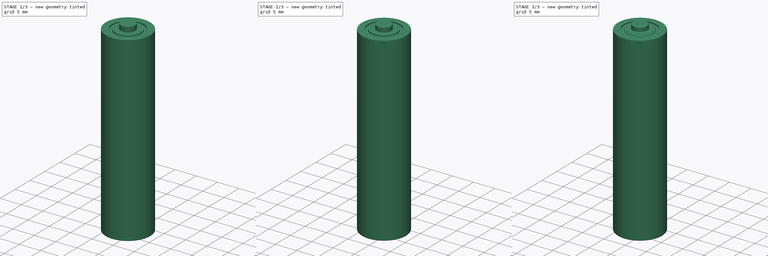
[diagram: build sequence overview — one tinted view per stage of 3, left to right]
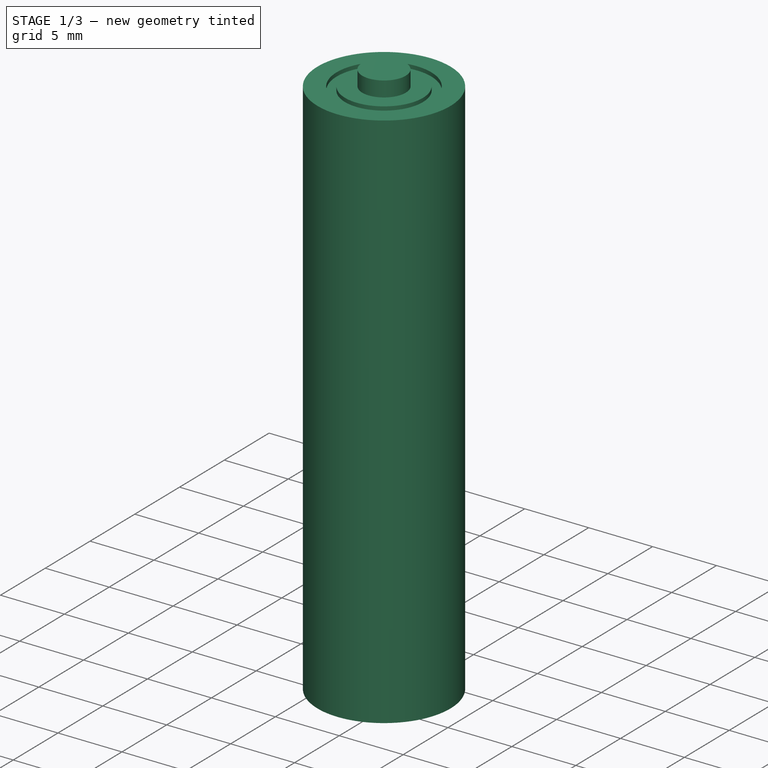
[diagram: stage 1 of 3 — iso view after this stage's code; geometry added in this stage tinted green]
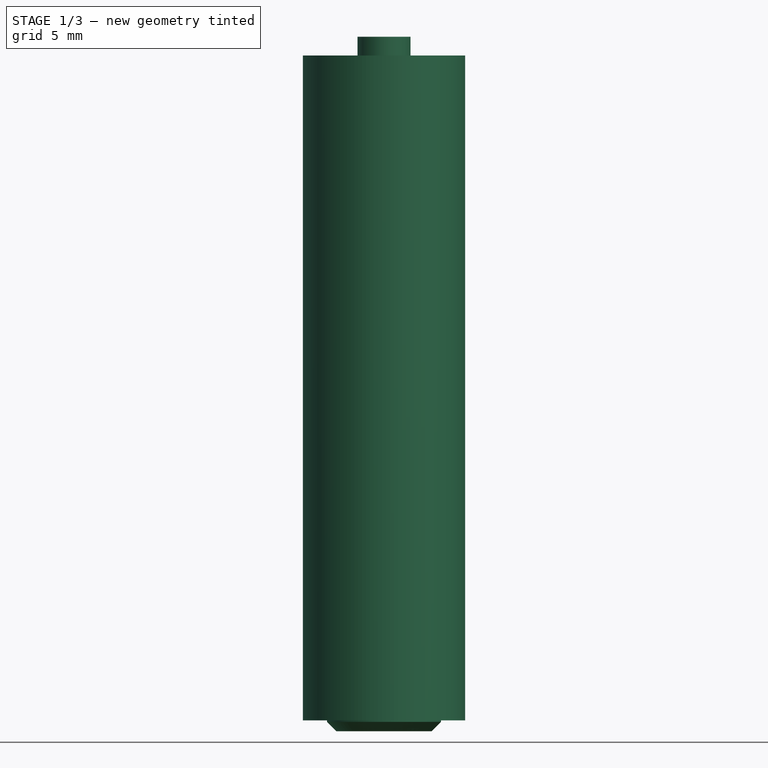
[diagram: stage 1 of 3 — front view after this stage's code; geometry added in this stage tinted green]
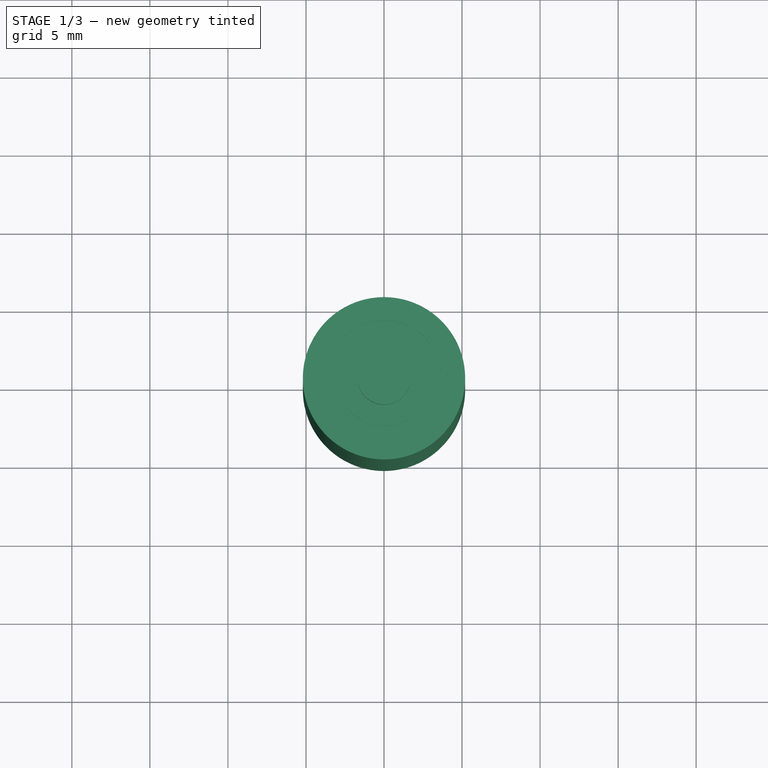
[diagram: stage 1 of 3 — top view after this stage's code; geometry added in this stage tinted green]
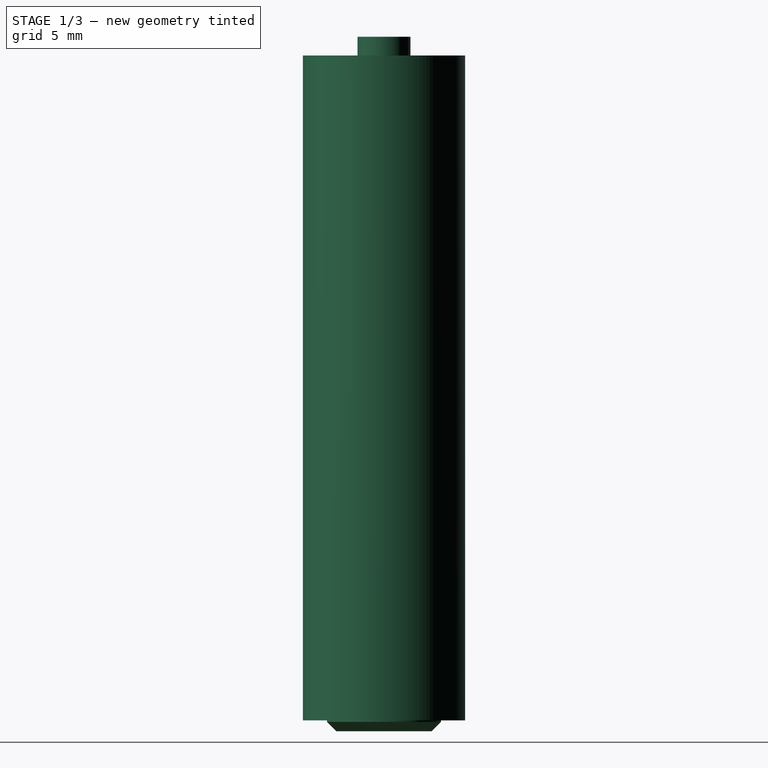
[diagram: stage 1 of 3 — right view after this stage's code; geometry added in this stage tinted green]
FCSTD DOCUMENT  (FreeCAD 0.14R3702 (Git))
Label: battery-AAA
License: CC-BY 3.0
LicenseURL: http://creativecommons.org/licenses/by/3.0/
objects: Part::Fillet×3, Part::Chamfer×2, Sketcher::SketchObject×1, PartDesign::Revolution×1, Part::Feature×1
note: 9 computed .brp shape members not serialized (recipe doc carries the construction recipe); baked Part::Feature solids carry a one-line shape summary decoded from their .brp

FEATURE [Sketcher::SketchObject] Sketch  label="battery-AAA-body-sketch"
  Placement = pos=(0,0,0) rot=(1,0,0;1.5708rad)
  sketch-geometry (12):
    g0: LineSegment StartX=0 StartY=0 StartZ=0 EndX=3.65123 EndY=0 EndZ=0
    g1: LineSegment StartX=3.65123 StartY=0 StartZ=0 EndX=3.65123 EndY=0.7 EndZ=0
    g2: LineSegment StartX=3.65123 StartY=0.7 StartZ=0 EndX=5.2 EndY=0.7 EndZ=0
    g3: LineSegment StartX=5.2 StartY=0.7 StartZ=0 EndX=5.2 EndY=43.3 EndZ=0
    g4: LineSegment StartX=5.2 StartY=43.3 StartZ=0 EndX=3.7 EndY=43.3 EndZ=0
    g5: LineSegment StartX=3.7 StartY=43.3 StartZ=0 EndX=3.7 EndY=43 EndZ=0
    g6: LineSegment StartX=3.7 StartY=43 StartZ=0 EndX=3.05 EndY=43 EndZ=0
    g7: LineSegment StartX=3.05 StartY=43 StartZ=0 EndX=3.05 EndY=43.3 EndZ=0
    g8: LineSegment StartX=3.05 StartY=43.3 StartZ=0 EndX=1.7 EndY=43.3 EndZ=0
    g9: LineSegment StartX=1.7 StartY=43.3 StartZ=0 EndX=1.7 EndY=44.5 EndZ=0
    g10: LineSegment StartX=1.7 StartY=44.5 StartZ=0 EndX=0 EndY=44.5 EndZ=0
    g11: LineSegment StartX=0 StartY=44.5 StartZ=0 EndX=0 EndY=0 EndZ=0
  constraints (34):
    c: PointOnObject(g0,g-1)
    c: Horizontal(g0)
    c: Coincident(g0,g1)
    c: Coincident(g1,g2)
    c: Horizontal(g2)
    c: Coincident(g2,g3)
    c: Vertical(g3)
    c: Coincident(g3,g4)
    c: Horizontal(g4)
    c: Coincident(g4,g5)
    c: Coincident(g5,g6)
    c: Coincident(g6,g7)
    c: Vertical(g7)
    c: Coincident(g8,g7)
    c: Horizontal(g8)
    c: Coincident(g8,g9)
    c: Coincident(g9,g10)
    c: Horizontal(g10)
    c: Vertical(g9)
    c: Vertical(g11)
    c: Coincident(g11,g10)
    c: Coincident(g11,g-1)
    c: DistanceY(g11) = -44.5
    c: Horizontal(g6)
    c: Vertical(g5)
    c: DistanceY(g9) = 1.2
    c: DistanceY(g7) = 0.3
    c: PointOnObject(g4,g8)
    c: DistanceX(g10,g3) = 5.2
    c: DistanceX(g10) = -1.7
    c: DistanceX(g6) = -0.65
    c: DistanceX(g4) = -1.5
    c: Vertical(g1)
    c: DistanceY(g1) = 0.7
FEATURE [PartDesign::Revolution] Revolution  label="battery-AAA-body"
  Angle = 360
  Axis = (0,0,1)
  Base = (0,0,0)
  Placement = pos=(0,0,0) rot=(1,0,0;1.5708rad)
  ReferenceAxis = -> Sketch [V_Axis]
  Reversed = true
  Sketch = -> Sketch
FEATURE [Part::Chamfer] Chamfer
  Base = -> Revolution
  Edges = 1 edges r=0.6: [Edge1]
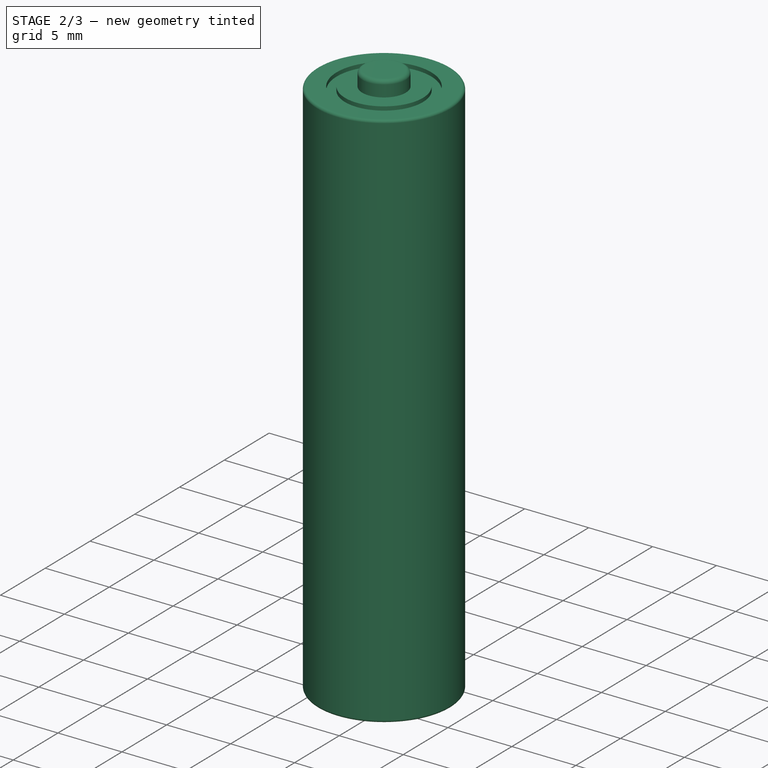
[diagram: stage 2 of 3 — iso view after this stage's code; geometry added in this stage tinted green]
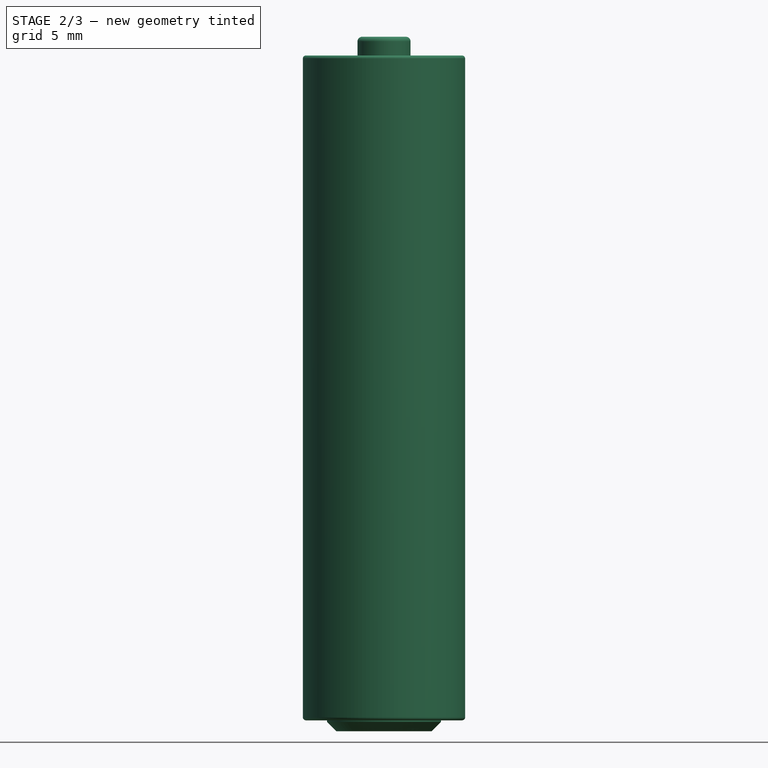
[diagram: stage 2 of 3 — front view after this stage's code; geometry added in this stage tinted green]
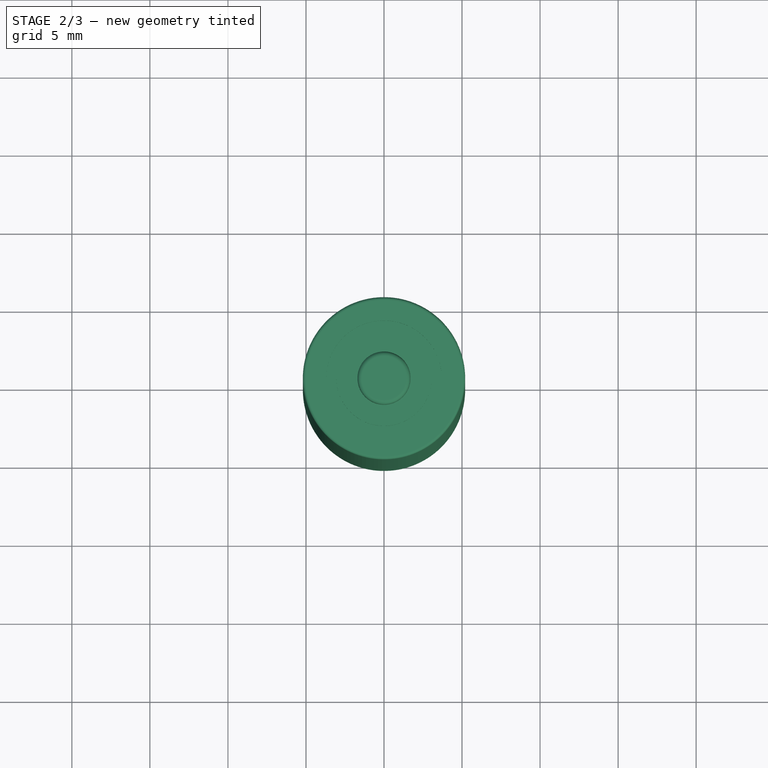
[diagram: stage 2 of 3 — top view after this stage's code; geometry added in this stage tinted green]
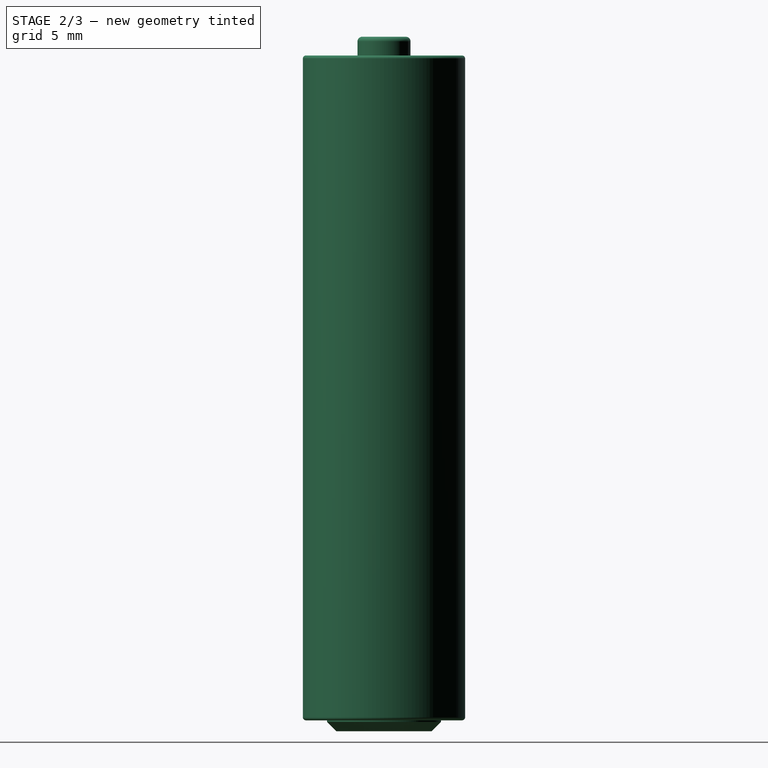
[diagram: stage 2 of 3 — right view after this stage's code; geometry added in this stage tinted green]
FEATURE [Part::Fillet] Fillet
  Base = -> Chamfer
  Edges = 2 edges r=0.2: [Edge6,Edge7]
FEATURE [Part::Fillet] Fillet001
  Base = -> Fillet
  Edges = 1 edges r=0.3: [Edge20]
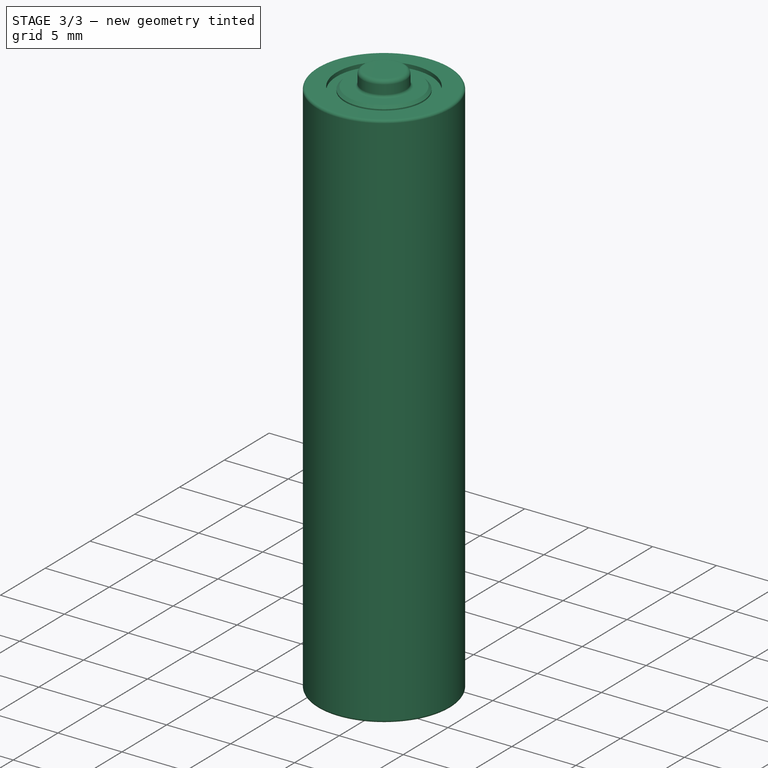
[diagram: stage 3 of 3 — iso view after this stage's code; geometry added in this stage tinted green]
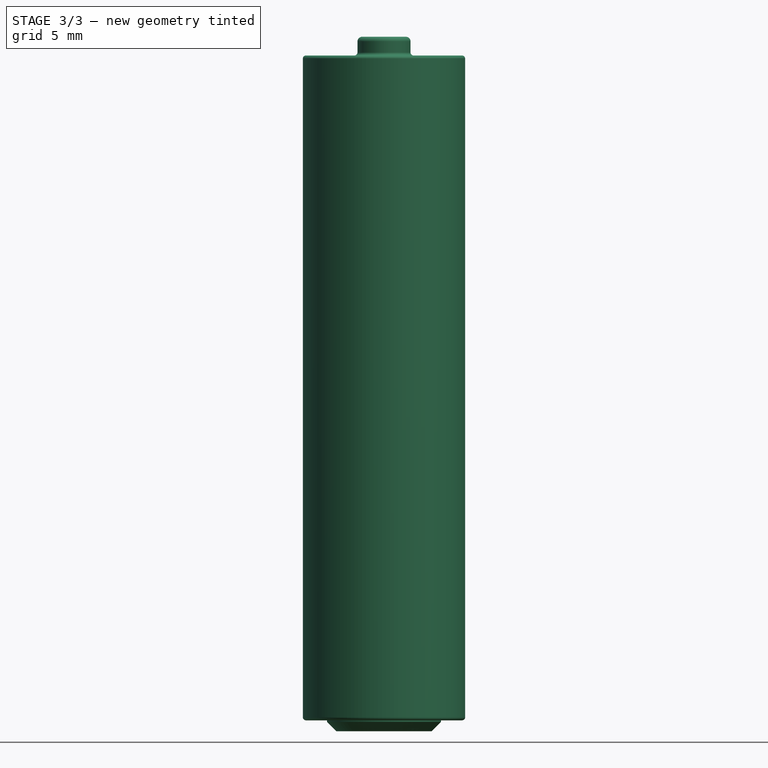
[diagram: stage 3 of 3 — front view after this stage's code; geometry added in this stage tinted green]
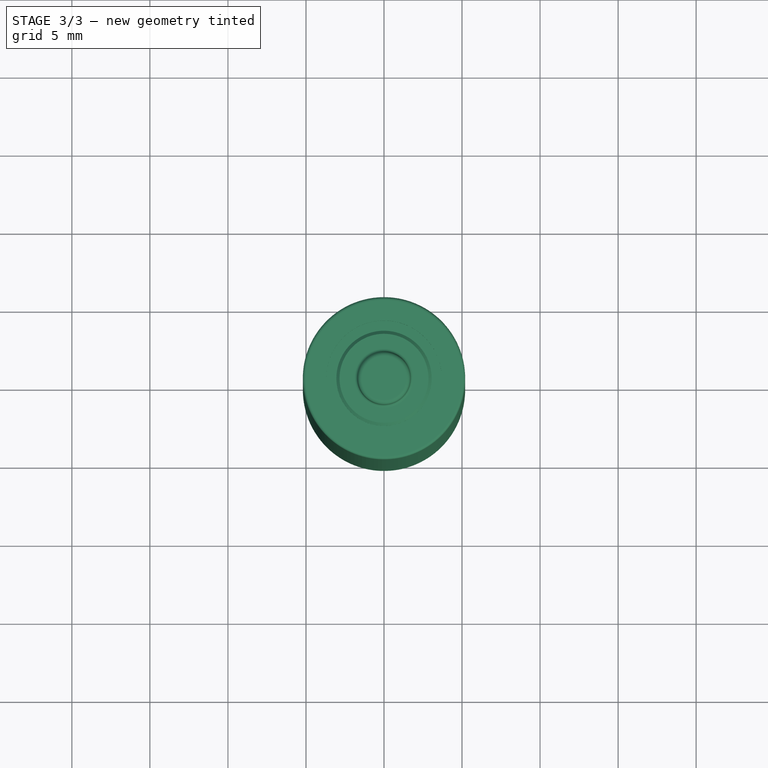
[diagram: stage 3 of 3 — top view after this stage's code; geometry added in this stage tinted green]
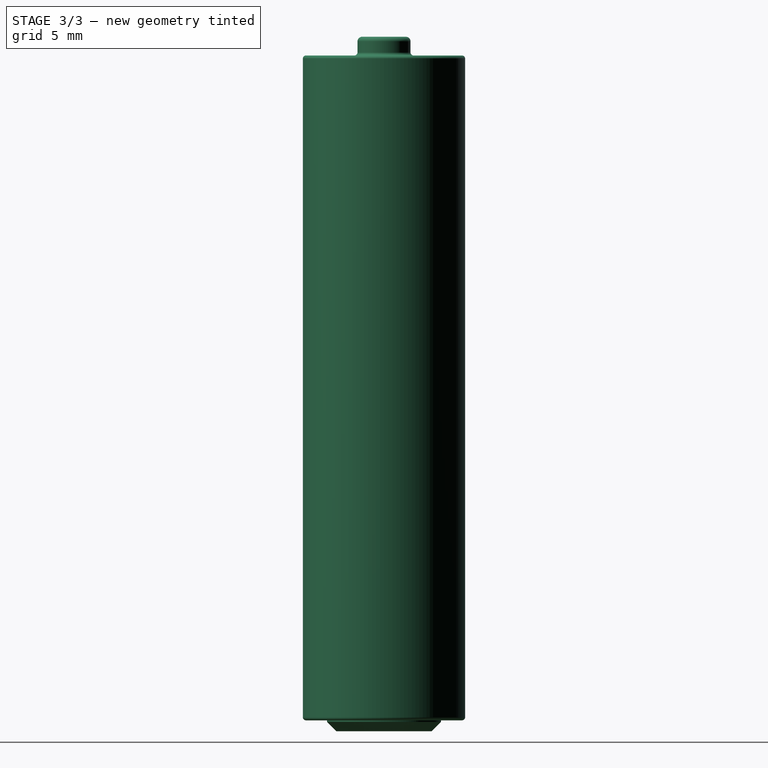
[diagram: stage 3 of 3 — right view after this stage's code; geometry added in this stage tinted green]
FEATURE [Part::Fillet] Fillet002
  Base = -> Fillet001
  Edges = 1 edges r=0.2: [Edge3]
FEATURE [Part::Chamfer] Chamfer001
  Base = -> Fillet002
  Edges = 1 edges r=0.2: [Edge8]
FEATURE [Part::Feature] Chamfer001001  label="Battery-AAA-final"
  shape: bbox 11.26 x 11.26 x 44.5 mm, 17 faces (baked)
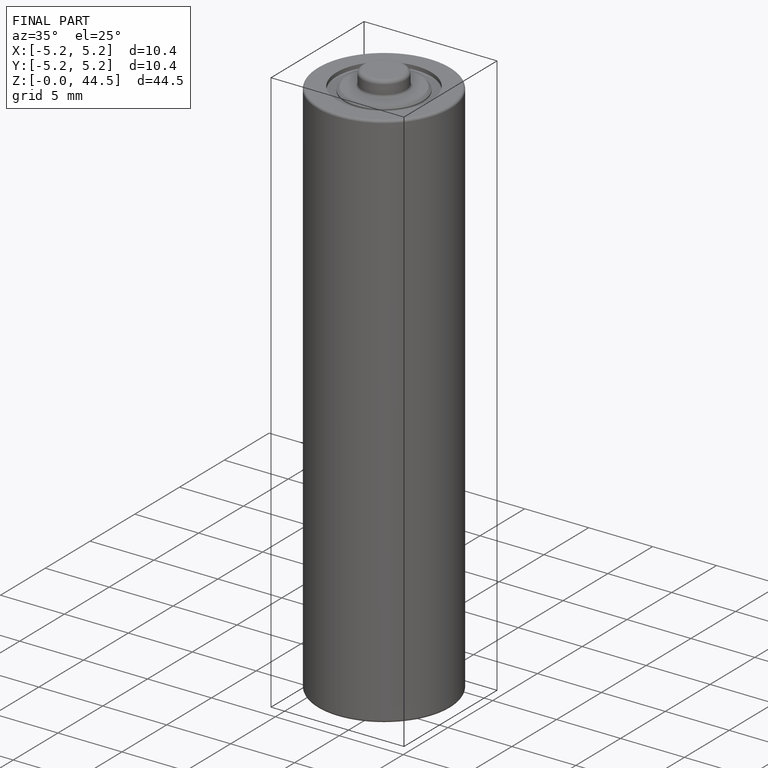
[diagram: finished part — iso view with bounding-box wireframe]
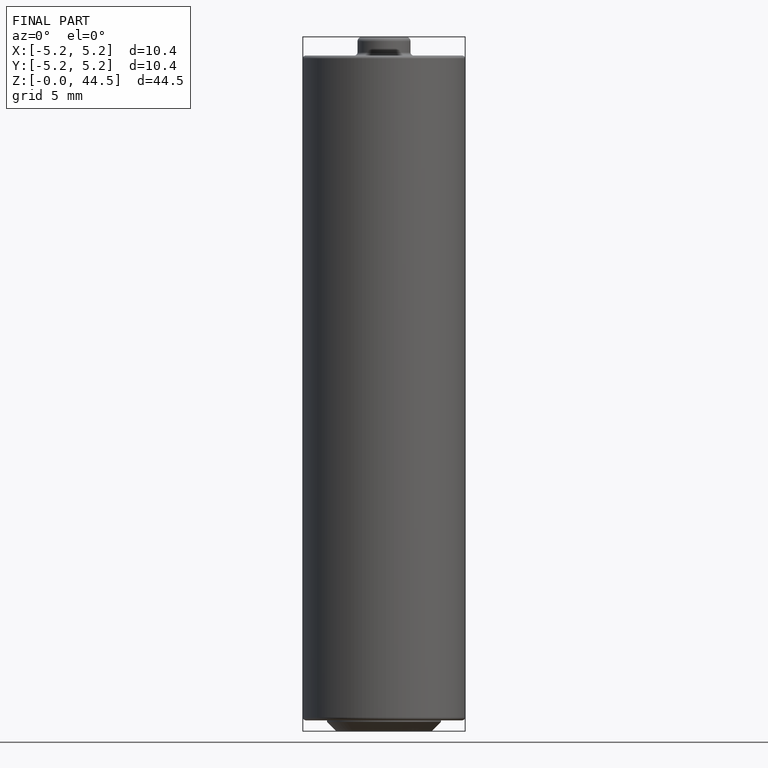
[diagram: finished part — front view with bounding-box wireframe]
